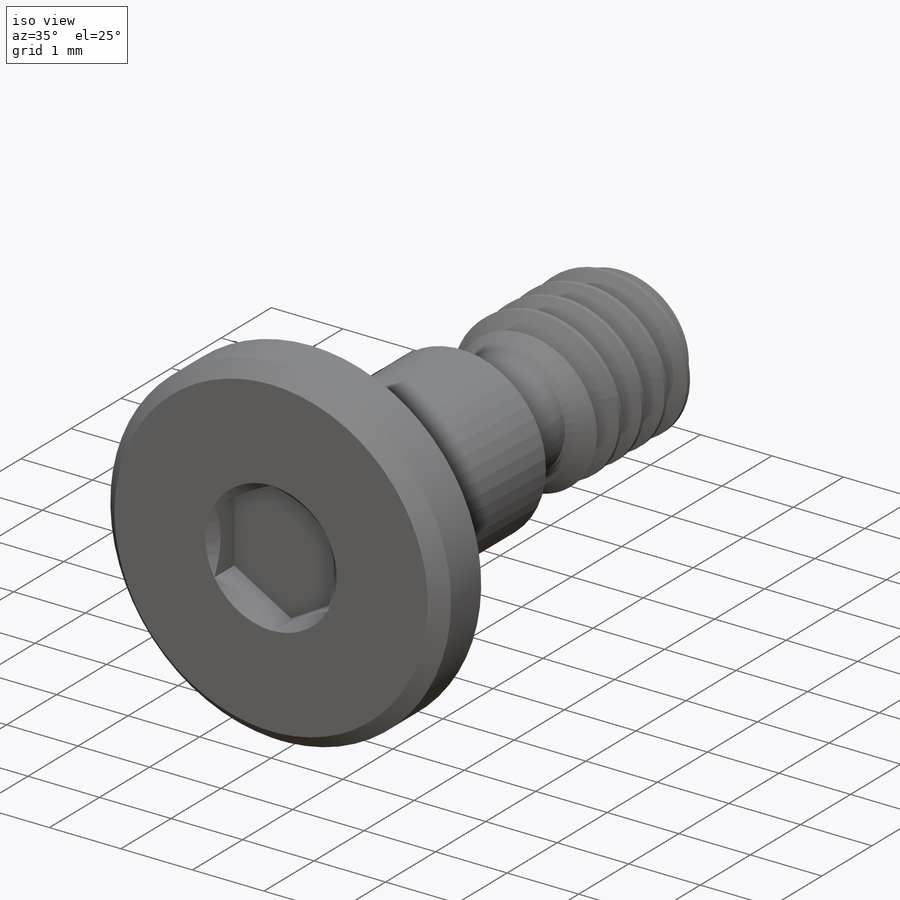
[diagram: iso view]
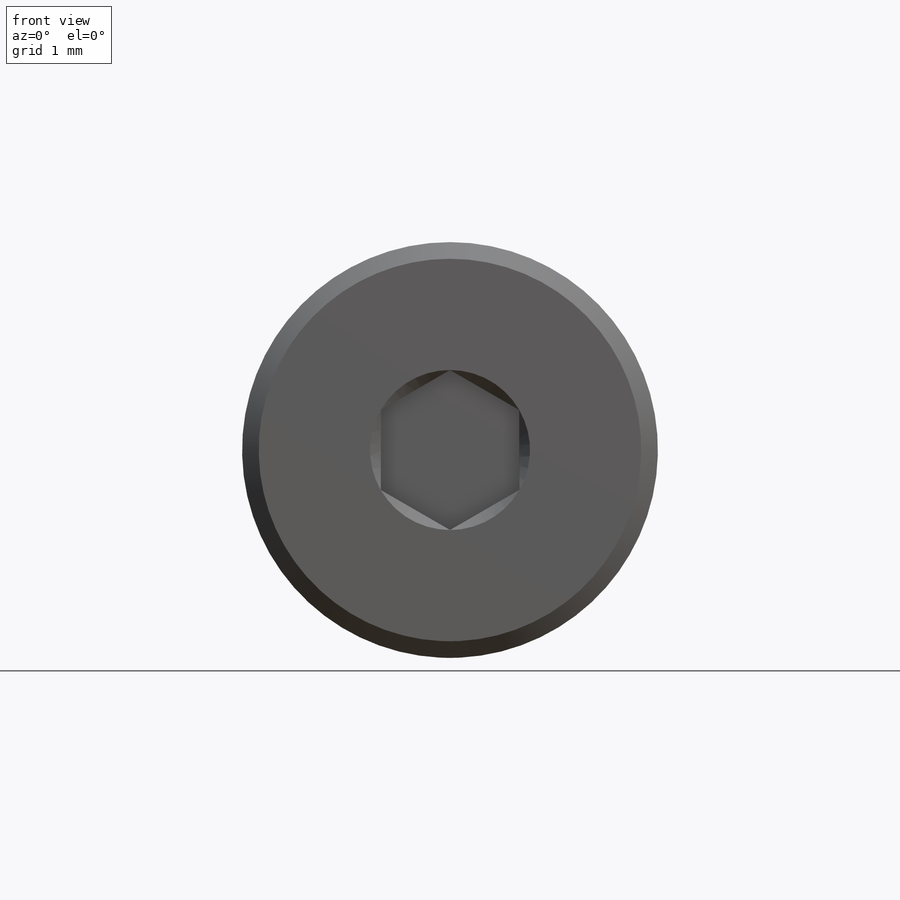
[diagram: front view]
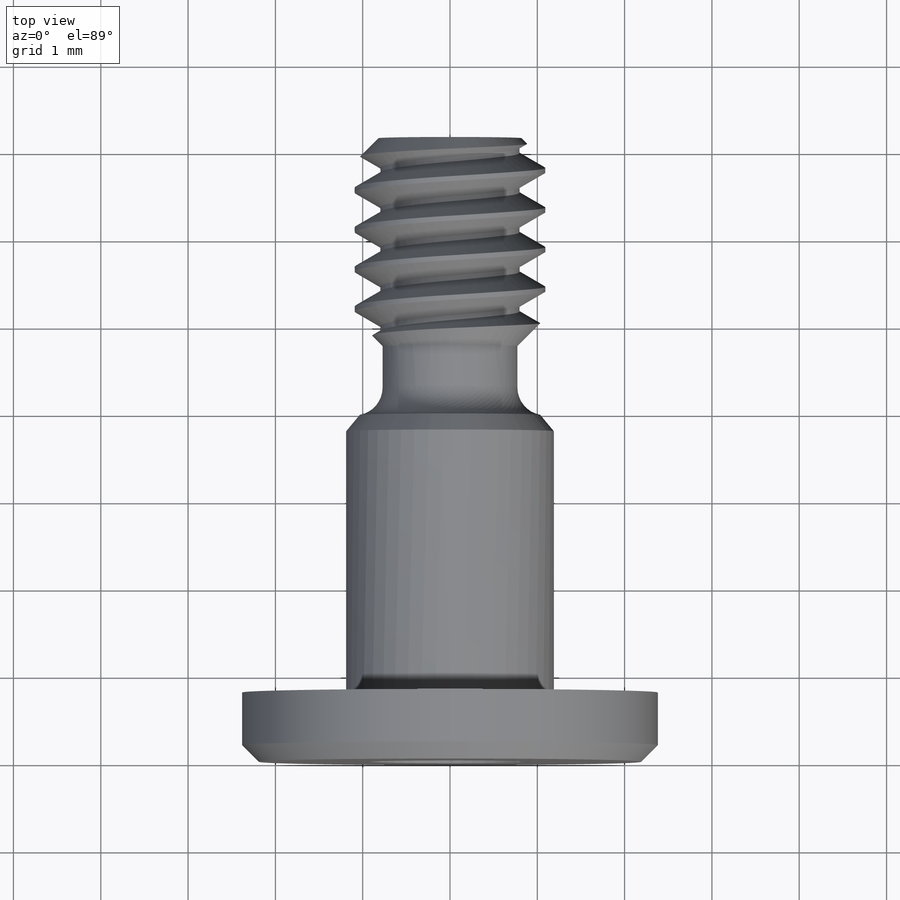
[diagram: top view]
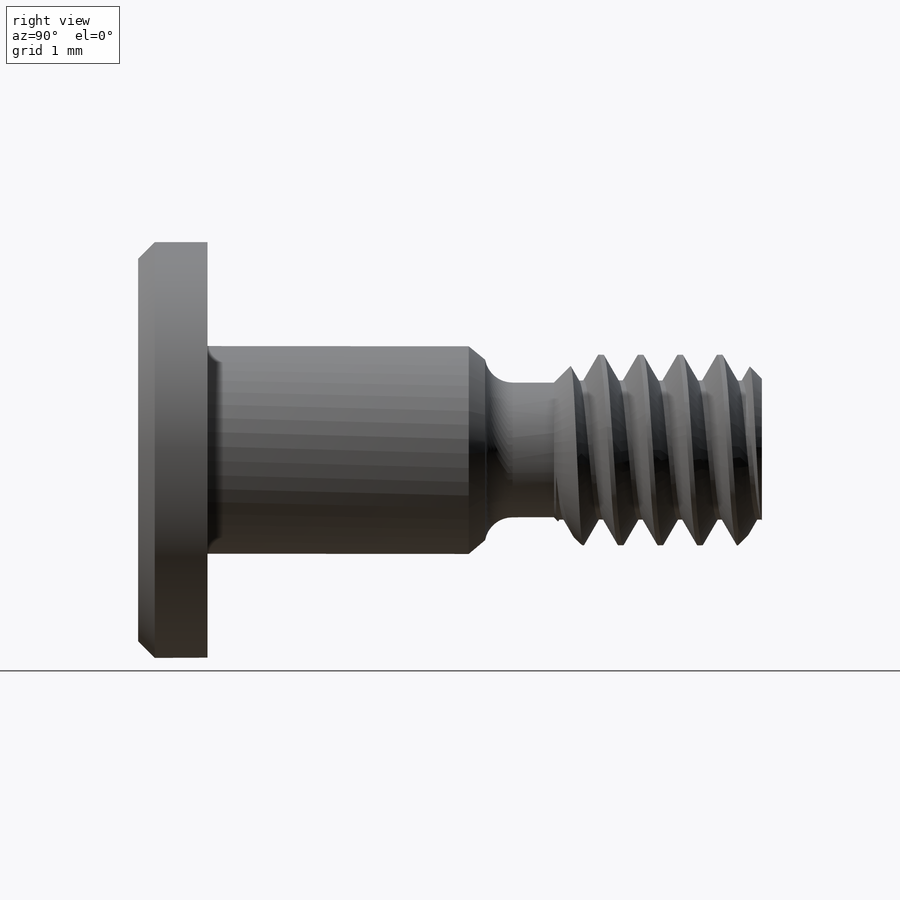
[diagram: right view]
SOLIDWORKS PART (.sldprt)
format: sldprt  version: not decoded by parser v0  size: 549,888 bytes
history: native  units: mm
features: sketch x8, cut_extrude x3, chamfer x2, material x1, revolve x1, plane x1, helix x1, sweep x1, cut_revolve x1, boolean_combine x1 (+15 scaffold rows collapsed)
feature tree (35):
  scaffold x15  (default folders/planes/origin — collapsed)
  material  "Material <not specified>"
  sketch  "Sketch1"  dims[c1.Head Dia=4.7625mm c1.Head Ht=~0.79375mm c1.Thread Lg=3.175mm c1.Shoulder Lg=19.05mm c1.Thread Dia=2.1844mm c1.Shoulder Dia=~2.38125mm c2.Shoulder Lg=3.175mm]
  revolve  "Revolve1"  Angle=360deg
  plane  "Plane1"
  sketch  "Sketch3"
  helix  "Helix/Spiral1"  Pitch=3.628571mm
  sketch  "Sketch4"  dims[c1.D1=~0.056696mm c1.D2=~0.226786mm c1.D3=~3.497926mm c2.D3=60.0deg]
  sweep  "Sweep1"
  sketch  "Sketch5"  dims[c1.D1=~0.79375mm c1.D2=0.0254mm c1.D3=~11.091573mm c2.D3=45.0deg]
  cut_revolve  "Cut-Revolve1"  Angle=360deg
  sketch  "Sketch6"  dims[D1=0.0mm]
  cut_extrude  "Cut-Extrude1"  [1 undecoded]
  chamfer  "Chamfer1"  Distance=0.27305mm Angle=45deg
  boolean_combine  "Combine1"
  chamfer  "Chamfer2"  Distance=0.1905mm Angle=45deg
  sketch  "Sketch8"  dims[Hex=1.5875mm]
  cut_extrude  "Cut-Extrude3"  Depth=0.396875mm
  sketch  "Sketch9"
  cut_extrude  "Cut-Extrude4"  Depth=0.396875mm
  sketch  "reference 1"
decode coverage: 12 of 18 modeling features carry decoded parameters
note: ~ marks probable driven/reference dimensions
note: 1 parameter value undecoded
note: suppression state not decoded; provenance and decode notes live in map.json
